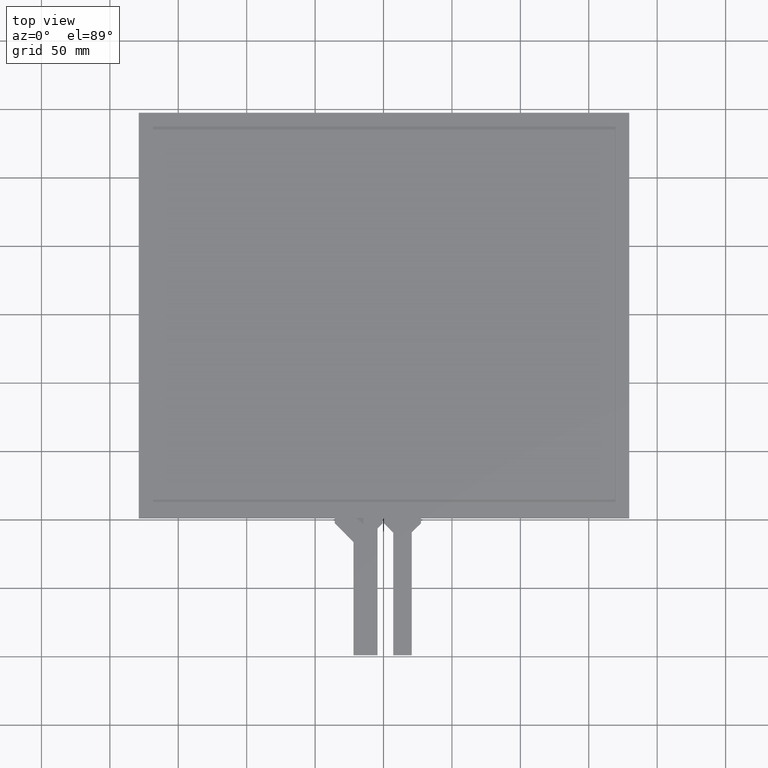
[diagram: clean part render]
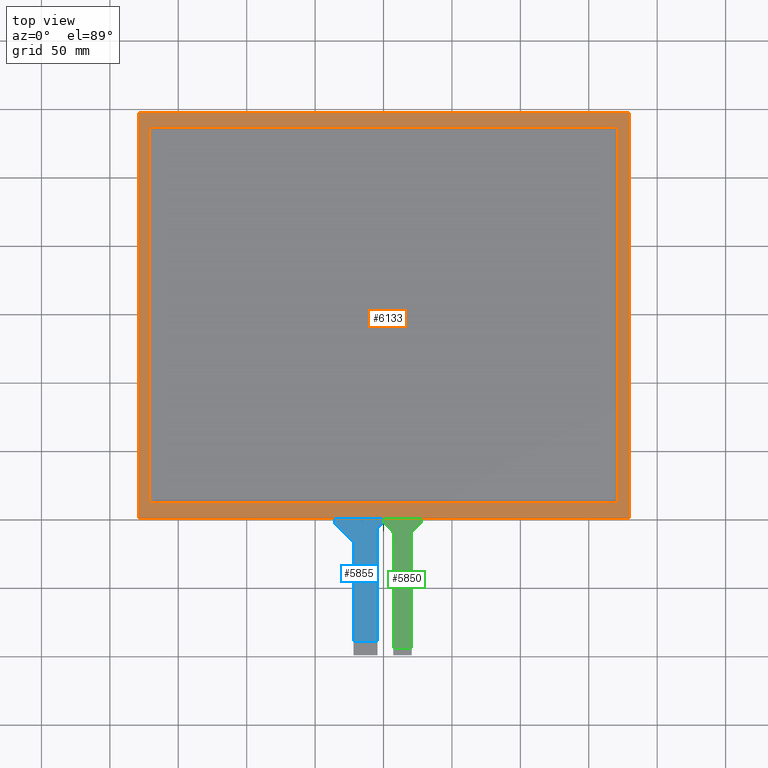
[diagram: same view with three faces highlighted in distinct colors, each labeled with its STEP entity id]
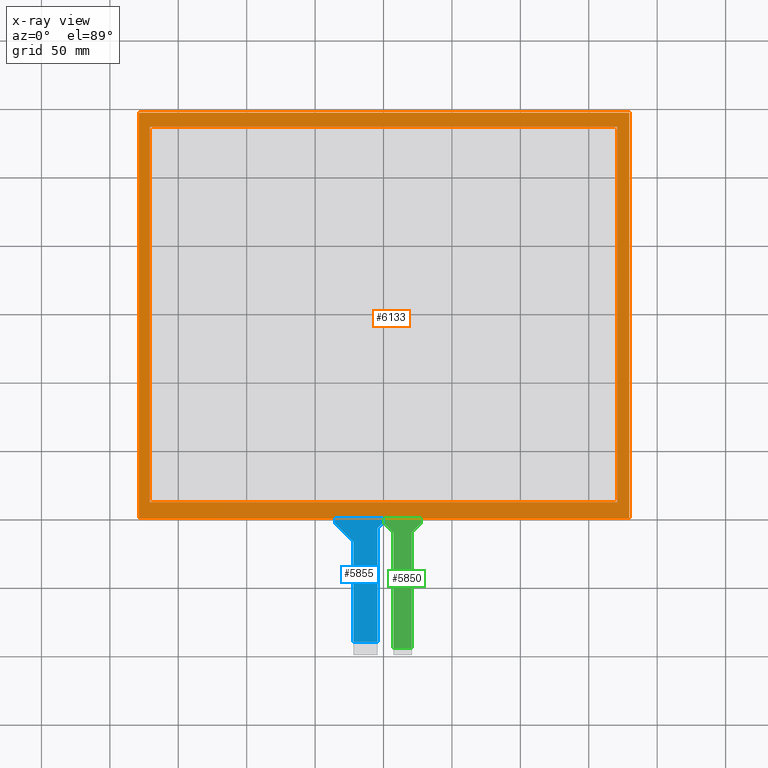
[diagram: x-ray of the same camera — body ghosted, the three highlighted faces saturated]
A machine part, top view with three faces highlighted in distinct colors.
The next image is the same camera in x-ray (body ghosted, the three faces saturated) — at least one of them is partly hidden behind the body in this view.
Their STEP definitions:

[orange] entity #6133 — the highlighted planar face has unit normal (0, 0, 1).
#85=FACE_BOUND('',#953,.T.);
#363=PLANE('',#6471);
#657=FACE_OUTER_BOUND('',#952,.T.);
#952=EDGE_LOOP('',(#5794,#5795,#5796,#5797));
#953=EDGE_LOOP('',(#5798,#5799,#5800,#5801));
#1778=LINE('',#9642,#2618);
#1782=LINE('',#9650,#2622);
#1785=LINE('',#9656,#2625);
#1788=LINE('',#9661,#2628);
#1790=LINE('',#9667,#2630);
#1791=LINE('',#9669,#2631);
#1792=LINE('',#9671,#2632);
#1793=LINE('',#9672,#2633);
#2618=VECTOR('',#7910,10.);
#2622=VECTOR('',#7916,10.);
#2625=VECTOR('',#7921,10.);
#2628=VECTOR('',#7926,10.);
#2630=VECTOR('',#7932,10.);
#2631=VECTOR('',#7933,10.);
#2632=VECTOR('',#7934,10.);
#2633=VECTOR('',#7935,10.);
#3226=VERTEX_POINT('',#9640);
#3227=VERTEX_POINT('',#9641);
#3230=VERTEX_POINT('',#9649);
#3232=VERTEX_POINT('',#9655);
#3234=VERTEX_POINT('',#9665);
#3235=VERTEX_POINT('',#9666);
#3236=VERTEX_POINT('',#9668);
#3237=VERTEX_POINT('',#9670);
#4082=EDGE_CURVE('',#3226,#3227,#1778,.T.);
#4086=EDGE_CURVE('',#3230,#3226,#1782,.T.);
#4089=EDGE_CURVE('',#3232,#3230,#1785,.T.);
#4092=EDGE_CURVE('',#3227,#3232,#1788,.T.);
#4094=EDGE_CURVE('',#3234,#3235,#1790,.T.);
#4095=EDGE_CURVE('',#3235,#3236,#1791,.T.);
#4096=EDGE_CURVE('',#3236,#3237,#1792,.T.);
#4097=EDGE_CURVE('',#3237,#3234,#1793,.T.);
#5794=ORIENTED_EDGE('',*,*,#4094,.T.);
#5795=ORIENTED_EDGE('',*,*,#4095,.T.);
#5796=ORIENTED_EDGE('',*,*,#4096,.T.);
#5797=ORIENTED_EDGE('',*,*,#4097,.T.);
#5798=ORIENTED_EDGE('',*,*,#4082,.T.);
#5799=ORIENTED_EDGE('',*,*,#4092,.T.);
#5800=ORIENTED_EDGE('',*,*,#4089,.T.);
#5801=ORIENTED_EDGE('',*,*,#4086,.T.);
#6133=ADVANCED_FACE('',(#657,#85),#363,.T.);
#6471=AXIS2_PLACEMENT_3D('',#9664,#7930,#7931);
#7910=DIRECTION('',(-1.29500389254228E-16,1.,0.));
#7916=DIRECTION('',(-1.,-1.03904822145546E-16,0.));
#7921=DIRECTION('',(-1.29500389254228E-16,-1.,0.));
#7926=DIRECTION('',(1.,0.,0.));
#7930=DIRECTION('center_axis',(0.,0.,1.));
#7931=DIRECTION('ref_axis',(1.,0.,0.));
#7932=DIRECTION('',(-1.,0.,0.));
#7933=DIRECTION('',(1.19821709234418E-16,-1.,0.));
#7934=DIRECTION('',(1.,4.95497026332008E-17,0.));
#7935=DIRECTION('',(0.,1.,0.));
#9640=CARTESIAN_POINT('',(-170.96,-137.17,0.));
#9641=CARTESIAN_POINT('',(-170.96,137.17,0.));
#9642=CARTESIAN_POINT('',(-170.96,-68.96,0.));
#9649=CARTESIAN_POINT('',(170.96,-137.17,0.));
#9650=CARTESIAN_POINT('',(85.655,-137.17,0.));
#9655=CARTESIAN_POINT('',(170.96,137.17,0.));
#9656=CARTESIAN_POINT('',(170.96,68.21,0.));
#9661=CARTESIAN_POINT('',(-85.305,137.17,0.));
#9664=CARTESIAN_POINT('Origin',(0.349999999999984,-0.749999999999948,0.));
#9665=CARTESIAN_POINT('',(179.6,147.5,0.));
#9666=CARTESIAN_POINT('',(-178.9,147.5,0.));
#9667=CARTESIAN_POINT('',(179.6,147.5,0.));
#9668=CARTESIAN_POINT('',(-178.9,-149.,0.));
#9669=CARTESIAN_POINT('',(-178.9,147.5,0.));
#9670=CARTESIAN_POINT('',(179.6,-149.,0.));
#9671=CARTESIAN_POINT('',(-178.9,-149.,0.));
#9672=CARTESIAN_POINT('',(179.6,-149.,0.));

[blue] entity #5855 — the highlighted planar face has unit normal (0, 0, 1).
#93=PLANE('',#6179);
#379=FACE_OUTER_BOUND('',#673,.T.);
#673=EDGE_LOOP('',(#4158,#4159,#4160,#4161,#4162,#4163,#4164,#4165,#4166,
#4167,#4168,#4169));
#983=LINE('',#8019,#1823);
#993=LINE('',#8042,#1833);
#994=LINE('',#8045,#1834);
#995=LINE('',#8047,#1835);
#996=LINE('',#8049,#1836);
#997=LINE('',#8053,#1837);
#998=LINE('',#8057,#1838);
#999=LINE('',#8058,#1839);
#1823=VECTOR('',#6531,10.);
#1833=VECTOR('',#6549,10.);
#1834=VECTOR('',#6552,10.);
#1835=VECTOR('',#6553,10.);
#1836=VECTOR('',#6554,10.);
#1837=VECTOR('',#6557,10.);
#1838=VECTOR('',#6560,10.);
#1839=VECTOR('',#6561,10.);
#2648=CIRCLE('',#6172,1.);
#2651=CIRCLE('',#6177,1.);
#2652=CIRCLE('',#6180,1.);
#2653=CIRCLE('',#6181,1.);
#2687=VERTEX_POINT('',#8009);
#2688=VERTEX_POINT('',#8010);
#2691=VERTEX_POINT('',#8018);
#2699=VERTEX_POINT('',#8035);
#2700=VERTEX_POINT('',#8037);
#2701=VERTEX_POINT('',#8044);
#2702=VERTEX_POINT('',#8046);
#2703=VERTEX_POINT('',#8048);
#2704=VERTEX_POINT('',#8050);
#2705=VERTEX_POINT('',#8052);
#2706=VERTEX_POINT('',#8054);
#2707=VERTEX_POINT('',#8056);
#3267=EDGE_CURVE('',#2687,#2688,#2648,.T.);
#3271=EDGE_CURVE('',#2691,#2688,#983,.T.);
#3280=EDGE_CURVE('',#2699,#2700,#2651,.T.);
#3283=EDGE_CURVE('',#2687,#2700,#993,.T.);
#3284=EDGE_CURVE('',#2699,#2701,#994,.T.);
#3285=EDGE_CURVE('',#2702,#2701,#995,.T.);
#3286=EDGE_CURVE('',#2702,#2703,#996,.T.);
#3287=EDGE_CURVE('',#2704,#2703,#2652,.T.);
#3288=EDGE_CURVE('',#2704,#2705,#997,.T.);
#3289=EDGE_CURVE('',#2706,#2705,#2653,.T.);
#3290=EDGE_CURVE('',#2706,#2707,#998,.T.);
#3291=EDGE_CURVE('',#2707,#2691,#999,.T.);
#4158=ORIENTED_EDGE('',*,*,#3280,.F.);
#4159=ORIENTED_EDGE('',*,*,#3284,.T.);
#4160=ORIENTED_EDGE('',*,*,#3285,.F.);
#4161=ORIENTED_EDGE('',*,*,#3286,.T.);
#4162=ORIENTED_EDGE('',*,*,#3287,.F.);
#4163=ORIENTED_EDGE('',*,*,#3288,.T.);
#4164=ORIENTED_EDGE('',*,*,#3289,.F.);
#4165=ORIENTED_EDGE('',*,*,#3290,.T.);
#4166=ORIENTED_EDGE('',*,*,#3291,.T.);
#4167=ORIENTED_EDGE('',*,*,#3271,.T.);
#4168=ORIENTED_EDGE('',*,*,#3267,.F.);
#4169=ORIENTED_EDGE('',*,*,#3283,.T.);
#5855=ADVANCED_FACE('',(#379),#93,.T.);
#6172=AXIS2_PLACEMENT_3D('',#8011,#6523,#6524);
#6177=AXIS2_PLACEMENT_3D('',#8038,#6543,#6544);
#6179=AXIS2_PLACEMENT_3D('',#8043,#6550,#6551);
#6180=AXIS2_PLACEMENT_3D('',#8051,#6555,#6556);
#6181=AXIS2_PLACEMENT_3D('',#8055,#6558,#6559);
#6523=DIRECTION('center_axis',(0.,0.,1.));
#6524=DIRECTION('ref_axis',(-0.923531889914344,0.383521639951697,0.));
#6531=DIRECTION('',(-5.27173776538863E-16,1.,0.));
#6543=DIRECTION('center_axis',(0.,0.,-1.));
#6544=DIRECTION('ref_axis',(0.923531889914352,-0.383521639951679,0.));
#6549=DIRECTION('',(0.708388929935267,0.705822303377534,0.));
#6550=DIRECTION('center_axis',(0.,0.,1.));
#6551=DIRECTION('ref_axis',(1.,0.,0.));
#6552=DIRECTION('',(-2.31296463463575E-16,1.,0.));
#6553=DIRECTION('',(1.,4.95497026332008E-17,0.));
#6554=DIRECTION('',(-1.2335811384724E-15,-1.,0.));
#6555=DIRECTION('center_axis',(0.,0.,-1.));
#6556=DIRECTION('ref_axis',(-0.924226414342084,-0.38184490965885,0.));
#6557=DIRECTION('',(0.705822303377533,-0.708388929935268,0.));
#6558=DIRECTION('center_axis',(0.,0.,1.));
#6559=DIRECTION('ref_axis',(0.924226414342084,0.38184490965885,0.));
#6560=DIRECTION('',(1.61291480575083E-16,-1.,0.));
#6561=DIRECTION('',(1.,0.,0.));
#8009=CARTESIAN_POINT('',(-4.10582230337753,-156.043301208075,-0.2));
#8010=CARTESIAN_POINT('',(-4.40000000000001,-156.751690138011,-0.2));
#8011=CARTESIAN_POINT('Origin',(-3.40000000000001,-156.751690138011,-0.2));
#8018=CARTESIAN_POINT('',(-4.39999999999996,-239.,-0.2));
#8019=CARTESIAN_POINT('',(-4.39999999999996,-249.,-0.2));
#8035=CARTESIAN_POINT('',(-0.650000000000009,-152.184722905467,-0.2));
#8037=CARTESIAN_POINT('',(-0.944177696622471,-152.893111835403,-0.2));
#8038=CARTESIAN_POINT('Origin',(-1.65000000000001,-152.184722905467,-0.2));
#8042=CARTESIAN_POINT('',(-4.40000000000001,-156.336413043478,-0.2));
#8043=CARTESIAN_POINT('Origin',(-18.15,-199.,-0.2));
#8044=CARTESIAN_POINT('',(-0.650000000000009,-149.,-0.2));
#8045=CARTESIAN_POINT('',(-0.650000000000009,-152.6,-0.2));
#8046=CARTESIAN_POINT('',(-35.65,-149.,-0.2));
#8047=CARTESIAN_POINT('',(80.725,-149.,-0.2));
#8048=CARTESIAN_POINT('',(-35.65,-152.186849170578,-0.2));
#8049=CARTESIAN_POINT('',(-35.65,-149.,-0.2));
#8050=CARTESIAN_POINT('',(-35.3583889299353,-152.892671473956,-0.2));
#8051=CARTESIAN_POINT('Origin',(-34.65,-152.186849170578,-0.2));
#8052=CARTESIAN_POINT('',(-22.1916110700647,-166.107328526044,-0.2));
#8053=CARTESIAN_POINT('',(-35.65,-152.6,-0.2));
#8054=CARTESIAN_POINT('',(-21.9,-166.813150829422,-0.2));
#8055=CARTESIAN_POINT('Origin',(-22.9,-166.813150829422,-0.2));
#8056=CARTESIAN_POINT('',(-21.8999999999999,-239.,-0.2));
#8057=CARTESIAN_POINT('',(-21.9,-166.4,-0.2));
#8058=CARTESIAN_POINT('',(-11.275,-239.,-0.2));

[green] entity #5850 — the highlighted planar face has unit normal (0, 0, 1).
#90=PLANE('',#6168);
#374=FACE_OUTER_BOUND('',#668,.T.);
#668=EDGE_LOOP('',(#4126,#4127,#4128,#4129,#4130,#4131,#4132,#4133,#4134,
#4135,#4136,#4137));
#964=LINE('',#7968,#1804);
#974=LINE('',#7991,#1814);
#975=LINE('',#7994,#1815);
#976=LINE('',#7996,#1816);
#977=LINE('',#7998,#1817);
#978=LINE('',#8002,#1818);
#979=LINE('',#8006,#1819);
#980=LINE('',#8007,#1820);
#1804=VECTOR('',#6490,10.);
#1814=VECTOR('',#6508,10.);
#1815=VECTOR('',#6511,10.);
#1816=VECTOR('',#6512,10.);
#1817=VECTOR('',#6513,10.);
#1818=VECTOR('',#6516,10.);
#1819=VECTOR('',#6519,10.);
#1820=VECTOR('',#6520,10.);
#2642=CIRCLE('',#6161,1.);
#2645=CIRCLE('',#6166,1.);
#2646=CIRCLE('',#6169,1.);
#2647=CIRCLE('',#6170,1.);
#2666=VERTEX_POINT('',#7958);
#2667=VERTEX_POINT('',#7959);
#2670=VERTEX_POINT('',#7967);
#2678=VERTEX_POINT('',#7984);
#2679=VERTEX_POINT('',#7986);
#2680=VERTEX_POINT('',#7993);
#2681=VERTEX_POINT('',#7995);
#2682=VERTEX_POINT('',#7997);
#2683=VERTEX_POINT('',#7999);
#2684=VERTEX_POINT('',#8001);
#2685=VERTEX_POINT('',#8003);
#2686=VERTEX_POINT('',#8005);
#3242=EDGE_CURVE('',#2666,#2667,#2642,.T.);
#3246=EDGE_CURVE('',#2670,#2667,#964,.T.);
#3255=EDGE_CURVE('',#2678,#2679,#2645,.T.);
#3258=EDGE_CURVE('',#2666,#2679,#974,.T.);
#3259=EDGE_CURVE('',#2678,#2680,#975,.T.);
#3260=EDGE_CURVE('',#2681,#2680,#976,.T.);
#3261=EDGE_CURVE('',#2681,#2682,#977,.T.);
#3262=EDGE_CURVE('',#2683,#2682,#2646,.T.);
#3263=EDGE_CURVE('',#2683,#2684,#978,.T.);
#3264=EDGE_CURVE('',#2685,#2684,#2647,.T.);
#3265=EDGE_CURVE('',#2685,#2686,#979,.T.);
#3266=EDGE_CURVE('',#2686,#2670,#980,.T.);
#4126=ORIENTED_EDGE('',*,*,#3255,.F.);
#4127=ORIENTED_EDGE('',*,*,#3259,.T.);
#4128=ORIENTED_EDGE('',*,*,#3260,.F.);
#4129=ORIENTED_EDGE('',*,*,#3261,.T.);
#4130=ORIENTED_EDGE('',*,*,#3262,.F.);
#4131=ORIENTED_EDGE('',*,*,#3263,.T.);
#4132=ORIENTED_EDGE('',*,*,#3264,.F.);
#4133=ORIENTED_EDGE('',*,*,#3265,.T.);
#4134=ORIENTED_EDGE('',*,*,#3266,.T.);
#4135=ORIENTED_EDGE('',*,*,#3246,.T.);
#4136=ORIENTED_EDGE('',*,*,#3242,.F.);
#4137=ORIENTED_EDGE('',*,*,#3258,.T.);
#5850=ADVANCED_FACE('',(#374),#90,.T.);
#6161=AXIS2_PLACEMENT_3D('',#7960,#6482,#6483);
#6166=AXIS2_PLACEMENT_3D('',#7987,#6502,#6503);
#6168=AXIS2_PLACEMENT_3D('',#7992,#6509,#6510);
#6169=AXIS2_PLACEMENT_3D('',#8000,#6514,#6515);
#6170=AXIS2_PLACEMENT_3D('',#8004,#6517,#6518);
#6482=DIRECTION('center_axis',(0.,0.,1.));
#6483=DIRECTION('ref_axis',(-0.923166632761983,0.384400010607313,0.));
#6490=DIRECTION('',(-4.45574458043541E-16,1.,0.));
#6502=DIRECTION('center_axis',(0.,0.,-1.));
#6503=DIRECTION('ref_axis',(0.923166632761977,-0.384400010607327,0.));
#6508=DIRECTION('',(0.709730526852055,0.704473263690187,0.));
#6509=DIRECTION('center_axis',(0.,0.,1.));
#6510=DIRECTION('ref_axis',(1.,0.,0.));
#6511=DIRECTION('',(-1.23358113847242E-15,1.,0.));
#6512=DIRECTION('',(1.,4.95497026332008E-17,0.));
#6513=DIRECTION('',(1.15648231731786E-15,-1.,0.));
#6514=DIRECTION('center_axis',(0.,0.,-1.));
#6515=DIRECTION('ref_axis',(-0.924589240379767,-0.380965532002523,0.));
#6516=DIRECTION('',(0.704473263690188,-0.709730526852055,0.));
#6517=DIRECTION('center_axis',(0.,0.,1.));
#6518=DIRECTION('ref_axis',(0.92458924037976,0.38096553200254,0.));
#6519=DIRECTION('',(1.23909335726321E-16,-1.,0.));
#6520=DIRECTION('',(1.,0.,0.));
#7958=CARTESIAN_POINT('',(20.8955267363098,-159.006662350626,-0.2));
#7959=CARTESIAN_POINT('',(20.6,-159.716392877478,-0.2));
#7960=CARTESIAN_POINT('Origin',(21.6,-159.716392877478,-0.2));
#7967=CARTESIAN_POINT('',(20.6000000000001,-244.,-0.2));
#7968=CARTESIAN_POINT('',(20.6000000000001,-249.,-0.2));
#7984=CARTESIAN_POINT('',(27.35,-152.183607122522,-0.2));
#7986=CARTESIAN_POINT('',(27.0544732636902,-152.893337649374,-0.2));
#7987=CARTESIAN_POINT('Origin',(26.35,-152.183607122522,-0.2));
#7991=CARTESIAN_POINT('',(20.6,-159.3,-0.2));
#7992=CARTESIAN_POINT('Origin',(13.85,-199.,-0.2));
#7993=CARTESIAN_POINT('',(27.35,-149.,-0.2));
#7994=CARTESIAN_POINT('',(27.35,-152.6,-0.2));
#7995=CARTESIAN_POINT('',(0.350000000000033,-149.,-0.2));
#7996=CARTESIAN_POINT('',(96.725,-149.,-0.2));
#7997=CARTESIAN_POINT('',(0.350000000000036,-152.187962399556,-0.2));
#7998=CARTESIAN_POINT('',(0.350000000000033,-149.,-0.2));
#7999=CARTESIAN_POINT('',(0.640269473147979,-152.892435663246,-0.2));
#8000=CARTESIAN_POINT('Origin',(1.35000000000004,-152.187962399556,-0.2));
#8001=CARTESIAN_POINT('',(6.8097305268521,-159.107937471082,-0.2));
#8002=CARTESIAN_POINT('',(0.350000000000037,-152.6,-0.2));
#8003=CARTESIAN_POINT('',(7.10000000000004,-159.812410734772,-0.2));
#8004=CARTESIAN_POINT('Origin',(6.10000000000004,-159.812410734772,-0.2));
#8005=CARTESIAN_POINT('',(7.10000000000005,-244.,-0.2));
#8006=CARTESIAN_POINT('',(7.10000000000004,-159.400373134328,-0.2));
#8007=CARTESIAN_POINT('',(10.475,-244.,-0.2));